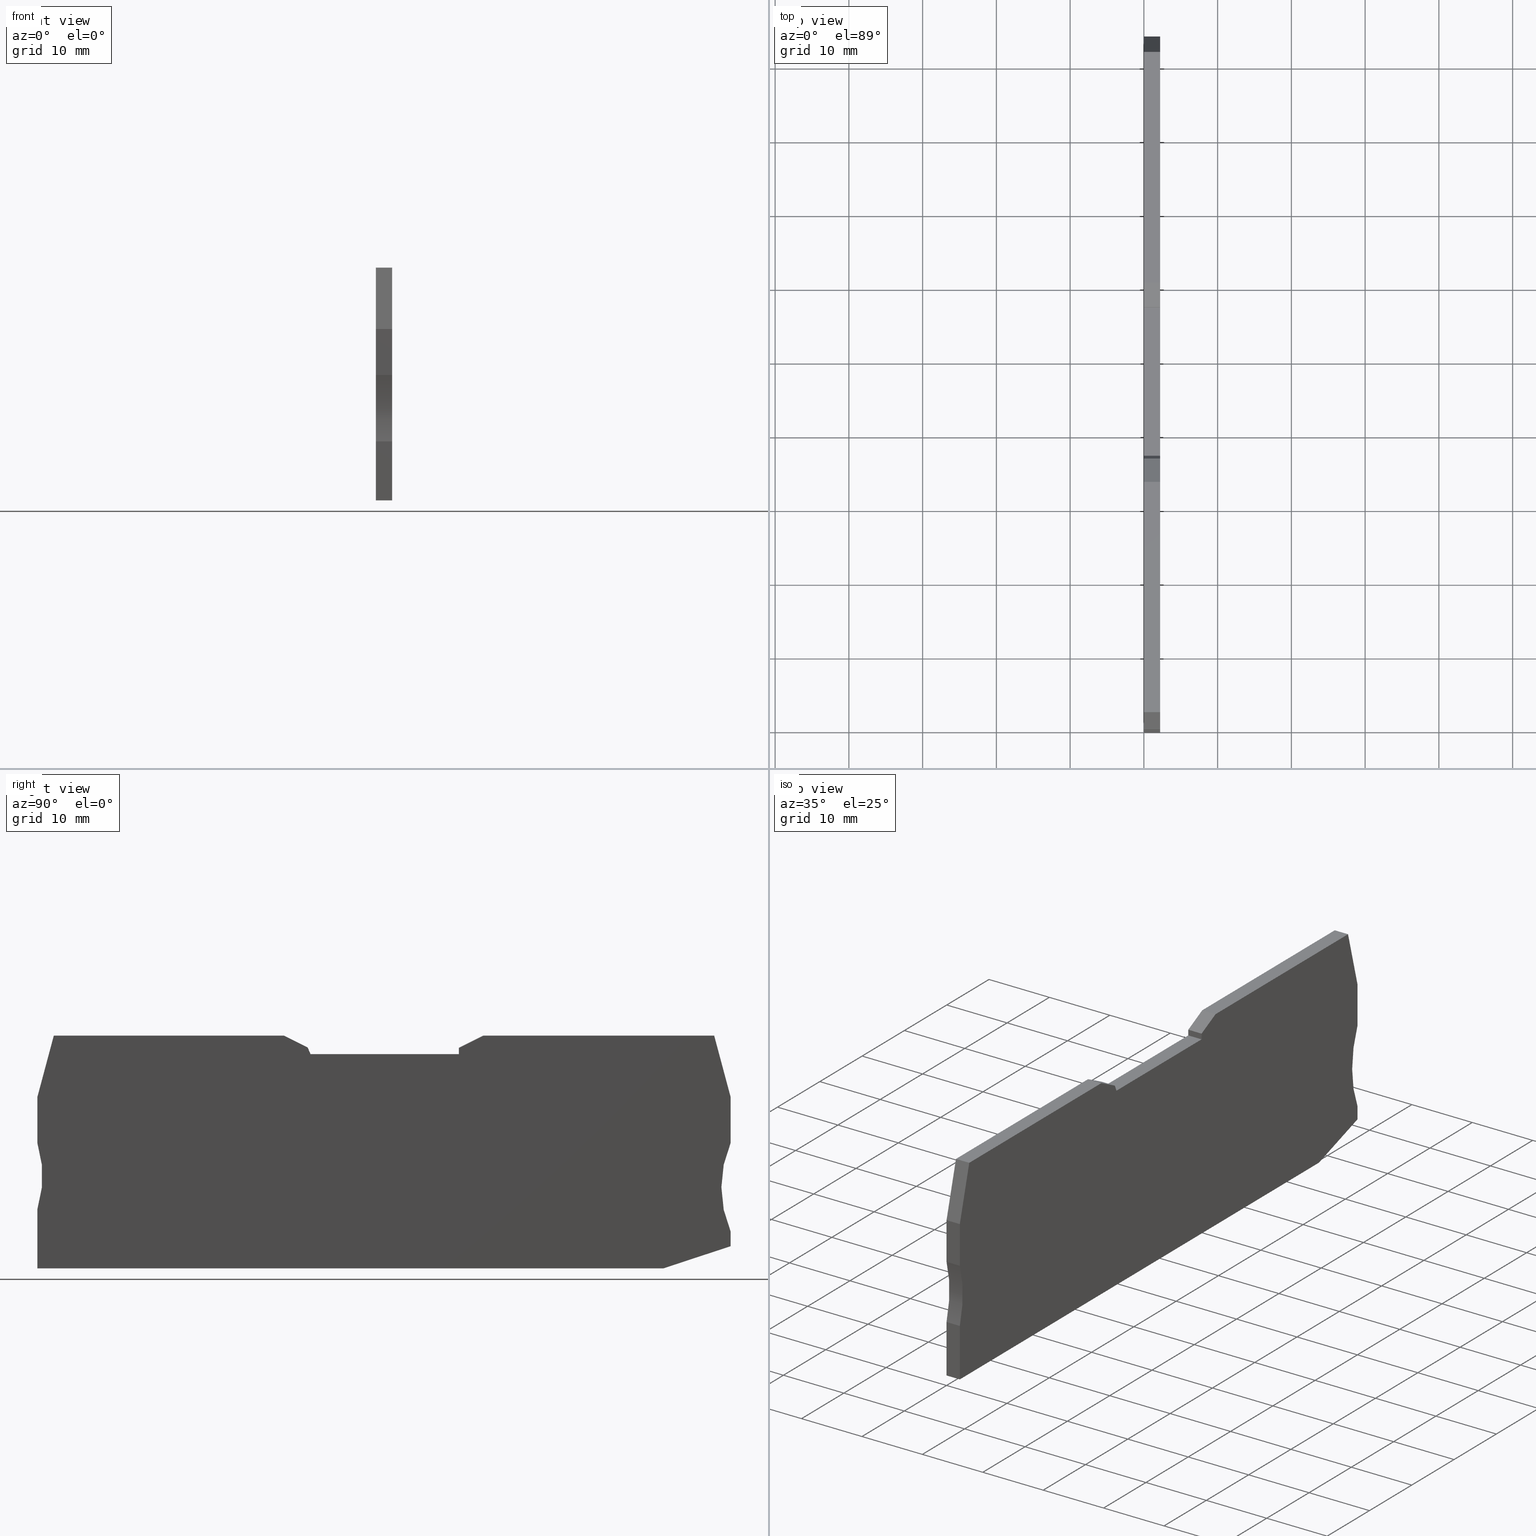
[diagram: canonical four-view strip — front | top / right | iso, engineering-drawing reading convention]
A machine part, canonical four-view strip (front | top / right | iso — engineering-drawing reading convention). The complete STEP part file that produces these views, byte-faithful:
ISO-10303-21;
HEADER;
FILE_DESCRIPTION(('Creo Elements/Direct Modeling STEP Export'),'2;1');
FILE_NAME(
'D:/temp/JobSpoolerServerData/JobServer Files/3d29cea6-d671-4413-abe6-f2
9cb63ec1a1/work/output/model.stp','2018-01-20T22:32:49',(''),(''),
'Creo Elements/Direct Modeling STEP processor for AP214 (Solid Model)',
'Creo Elements/Direct Modeling 18.1I  14-Aug-2016 (C) Parametric Technol
ogy GmbH','');
FILE_SCHEMA(('AUTOMOTIVE_DESIGN { 1 0 10303 214 1 1 1 1 }'));
ENDSEC;
DATA;
#10=CARTESIAN_POINT('',(83.7553585403554,-35.6536172442634,
-3.68594044175552E-14));
#20=DIRECTION('',(0.312838856482264,-0.949806217012117,0.));
#30=DIRECTION('',(-0.949806217012117,-0.312838856482264,0.));
#40=AXIS2_PLACEMENT_3D('',#10,#20,#30);
#50=PLANE('',#40);
#60=CARTESIAN_POINT('',(47.920285,-47.4566600413391,2.19999999999833));
#70=DIRECTION('',(0.949806217012117,0.312838856482264,
9.43689570931383E-16));
#80=VECTOR('',#70,1.);
#90=LINE('',#60,#80);
#100=CARTESIAN_POINT('',(76.0243170722712,-38.2000000000014,
2.19999999999836));
#110=VERTEX_POINT('',#100);
#120=CARTESIAN_POINT('',(85.1296808260529,-35.2009550015923,
2.19999999999836));
#130=VERTEX_POINT('',#120);
#140=EDGE_CURVE('',#110,#130,#90,.T.);
#150=ORIENTED_EDGE('',*,*,#140,.F.);
#160=CARTESIAN_POINT('',(85.1296808260528,-35.2009550015923,
-2.8421709430404E-14));
#170=DIRECTION('',(0.,0.,1.));
#180=VECTOR('',#170,1.);
#190=LINE('',#160,#180);
#200=CARTESIAN_POINT('',(85.1296808260529,-35.2009550015923,
-3.68594044175553E-14));
#210=VERTEX_POINT('',#200);
#220=EDGE_CURVE('',#210,#130,#190,.T.);
#230=ORIENTED_EDGE('',*,*,#220,.T.);
#240=CARTESIAN_POINT('',(47.920285,-47.4566600413391,
-3.68594044175553E-14));
#250=DIRECTION('',(0.949806217012117,0.312838856482264,0.));
#260=VECTOR('',#250,1.);
#270=LINE('',#240,#260);
#280=CARTESIAN_POINT('',(76.0243170722712,-38.2000000000014,
-3.68594044175554E-14));
#290=VERTEX_POINT('',#280);
#300=EDGE_CURVE('',#290,#210,#270,.T.);
#310=ORIENTED_EDGE('',*,*,#300,.T.);
#320=CARTESIAN_POINT('',(76.0243170722712,-38.2000000000014,
-2.8421709430404E-14));
#330=DIRECTION('',(0.,0.,-1.));
#340=VECTOR('',#330,1.);
#350=LINE('',#320,#340);
#360=EDGE_CURVE('',#110,#290,#350,.T.);
#370=ORIENTED_EDGE('',*,*,#360,.T.);
#380=EDGE_LOOP('',(#370,#310,#230,#150));
#390=FACE_OUTER_BOUND('',#380,.T.);
#400=ADVANCED_FACE('',(#390),#50,.T.);
#410=COLOUR_RGB('',0.560784339904785,0.588235318660736,0.600000023841858
);
#420=FILL_AREA_STYLE_COLOUR('',#410);
#430=FILL_AREA_STYLE('',(#420));
#440=SURFACE_STYLE_FILL_AREA(#430);
#450=SURFACE_SIDE_STYLE('',(#440));
#460=SURFACE_STYLE_USAGE(.BOTH.,#450);
#470=PRESENTATION_STYLE_ASSIGNMENT((#460));
#480=CARTESIAN_POINT('',(13.8541909547486,-6.65000000001046,
2.19999999999845));
#490=DIRECTION('',(3.52929730522715E-30,-3.03161873061274E-15,1.));
#500=DIRECTION('',(-1.06994838164277E-44,-1.,-3.03161873061274E-15));
#510=AXIS2_PLACEMENT_3D('',#480,#490,#500);
#520=PLANE('',#510);
#530=CARTESIAN_POINT('',(47.920285,-18.3203020870181,2.19999999999842));
#540=DIRECTION('',(-0.894427190999537,0.447213595500715,
1.33226762955019E-15));
#550=VECTOR('',#540,1.);
#560=LINE('',#530,#550);
#570=CARTESIAN_POINT('',(27.7810984886105,-8.25070883130206,
2.19999999999845));
#580=VERTEX_POINT('',#570);
#590=CARTESIAN_POINT('',(24.5796808260341,-6.65000000001046,
2.19999999999845));
#600=VERTEX_POINT('',#590);
#610=EDGE_CURVE('',#580,#600,#560,.T.);
#620=ORIENTED_EDGE('',*,*,#610,.T.);
#630=CARTESIAN_POINT('',(38.6158283461584,-33.886127,2.19999999999837));
#640=DIRECTION('',(-0.389303997086195,0.92110933002153,
2.80331313717852E-15));
#650=VECTOR('',#640,1.);
#660=LINE('',#630,#650);
#670=CARTESIAN_POINT('',(28.1611811075906,-9.15000000000794,
2.19999999999844));
#680=VERTEX_POINT('',#670);
#690=EDGE_CURVE('',#680,#580,#660,.T.);
#700=ORIENTED_EDGE('',*,*,#690,.T.);
#710=CARTESIAN_POINT('',(47.920285,-9.15000000000794,2.19999999999844));
#720=DIRECTION('',(-1.,0.,3.52929730522715E-30));
#730=VECTOR('',#720,1.);
#740=LINE('',#710,#730);
#750=CARTESIAN_POINT('',(48.278415052629,-9.15000000000794,
2.19999999999884));
#760=VERTEX_POINT('',#750);
#770=EDGE_CURVE('',#760,#680,#740,.T.);
#780=ORIENTED_EDGE('',*,*,#770,.T.);
#790=CARTESIAN_POINT('',(48.278415052629,-33.886127,2.19999999999837));
#800=DIRECTION('',(-3.78653234506086E-29,-1.,-3.03161873061274E-15));
#810=VECTOR('',#800,1.);
#820=LINE('',#790,#810);
#830=CARTESIAN_POINT('',(48.278415052629,-8.30000000000333,
2.19999999999845));
#840=VERTEX_POINT('',#830);
#850=EDGE_CURVE('',#840,#760,#820,.T.);
#860=ORIENTED_EDGE('',*,*,#850,.T.);
#870=CARTESIAN_POINT('',(47.920285,-8.4790650263176,2.19999999999845));
#880=DIRECTION('',(-0.894427191000128,-0.447213595499534,
-1.36002320516582E-15));
#890=VECTOR('',#880,1.);
#900=LINE('',#870,#890);
#910=CARTESIAN_POINT('',(51.5784150526186,-6.65000000001046,
2.19999999999845));
#920=VERTEX_POINT('',#910);
#930=EDGE_CURVE('',#920,#840,#900,.T.);
#940=ORIENTED_EDGE('',*,*,#930,.T.);
#950=CARTESIAN_POINT('',(47.920285,-6.65000000001046,2.19999999999845));
#960=DIRECTION('',(-1.,0.,3.52929730522715E-30));
#970=VECTOR('',#960,1.);
#980=LINE('',#950,#970);
#990=CARTESIAN_POINT('',(82.9015374042713,-6.65000000001045,
2.19999999999845));
#1000=VERTEX_POINT('',#990);
#1010=EDGE_CURVE('',#1000,#920,#980,.T.);
#1020=ORIENTED_EDGE('',*,*,#1010,.T.);
#1030=CARTESIAN_POINT('',(90.1994356388816,-33.886127,2.19999999999837))
;
#1040=DIRECTION('',(-0.258819045102903,0.965925826288966,
2.96984659087229E-15));
#1050=VECTOR('',#1040,1.);
#1060=LINE('',#1030,#1050);
#1070=CARTESIAN_POINT('',(85.1296808260516,-14.9655444566315,
2.19999999999843));
#1080=VERTEX_POINT('',#1070);
#1090=EDGE_CURVE('',#1080,#1000,#1060,.T.);
#1100=ORIENTED_EDGE('',*,*,#1090,.T.);
#1110=CARTESIAN_POINT('',(85.1296808260516,-33.886127,2.19999999999837))
;
#1120=DIRECTION('',(-2.77555756156289E-17,1.,3.03161873061274E-15));
#1130=VECTOR('',#1120,1.);
#1140=LINE('',#1110,#1130);
#1150=CARTESIAN_POINT('',(85.1296808260516,-21.2000000000027,
2.19999999999839));
#1160=VERTEX_POINT('',#1150);
#1170=EDGE_CURVE('',#1160,#1080,#1140,.T.);
#1180=ORIENTED_EDGE('',*,*,#1170,.T.);
#1190=CARTESIAN_POINT('',(98.8774079109191,-27.2000000000027,
2.19999999999839));
#1200=DIRECTION('',(0.,0.,1.));
#1210=DIRECTION('',(1.,0.,0.));
#1220=AXIS2_PLACEMENT_3D('',#1190,#1200,#1210);
#1230=CIRCLE('',#1220,15.);
#1240=CARTESIAN_POINT('',(85.1296808260528,-33.2000000000057,
2.19999999999837));
#1250=VERTEX_POINT('',#1240);
#1260=EDGE_CURVE('',#1160,#1250,#1230,.T.);
#1270=ORIENTED_EDGE('',*,*,#1260,.F.);
#1280=CARTESIAN_POINT('',(85.1296808260528,-33.886127,2.19999999999837))
;
#1290=DIRECTION('',(0.,-1.,-3.03161873061274E-15));
#1300=VECTOR('',#1290,1.);
#1310=LINE('',#1280,#1300);
#1320=EDGE_CURVE('',#1250,#130,#1310,.T.);
#1330=ORIENTED_EDGE('',*,*,#1320,.F.);
#1340=ORIENTED_EDGE('',*,*,#140,.T.);
#1350=CARTESIAN_POINT('',(47.920285,-38.2000000000014,2.19999999999836))
;
#1360=DIRECTION('',(1.,0.,-3.52929730522715E-30));
#1370=VECTOR('',#1360,1.);
#1380=LINE('',#1350,#1370);
#1390=CARTESIAN_POINT('',(-8.87031917530946,-38.2000000000014,
2.19999999999836));
#1400=VERTEX_POINT('',#1390);
#1410=EDGE_CURVE('',#1400,#110,#1380,.T.);
#1420=ORIENTED_EDGE('',*,*,#1410,.T.);
#1430=CARTESIAN_POINT('',(-8.87031917530946,-33.886127,2.19999999999837)
);
#1440=DIRECTION('',(0.,-1.,-3.03161873061274E-15));
#1450=VECTOR('',#1440,1.);
#1460=LINE('',#1430,#1450);
#1470=CARTESIAN_POINT('',(-8.87031917530946,-30.2000000000115,
2.19999999999839));
#1480=VERTEX_POINT('',#1470);
#1490=EDGE_CURVE('',#1480,#1400,#1460,.T.);
#1500=ORIENTED_EDGE('',*,*,#1490,.T.);
#1510=CARTESIAN_POINT('',(-23.1794071965627,-25.7000000000085,
2.19999999999839));
#1520=DIRECTION('',(0.,0.,1.));
#1530=DIRECTION('',(1.,0.,0.));
#1540=AXIS2_PLACEMENT_3D('',#1510,#1520,#1530);
#1550=CIRCLE('',#1540,15.);
#1560=CARTESIAN_POINT('',(-8.87031917530947,-21.2000000000055,
2.19999999999839));
#1570=VERTEX_POINT('',#1560);
#1580=EDGE_CURVE('',#1480,#1570,#1550,.T.);
#1590=ORIENTED_EDGE('',*,*,#1580,.F.);
#1600=CARTESIAN_POINT('',(-8.87031917530947,-33.886127,2.19999999999837)
);
#1610=DIRECTION('',(0.,-1.,-3.03161873061274E-15));
#1620=VECTOR('',#1610,1.);
#1630=LINE('',#1600,#1620);
#1640=CARTESIAN_POINT('',(-8.87031917530947,-14.9655444566314,
2.19999999999843));
#1650=VERTEX_POINT('',#1640);
#1660=EDGE_CURVE('',#1650,#1570,#1630,.T.);
#1670=ORIENTED_EDGE('',*,*,#1660,.T.);
#1680=CARTESIAN_POINT('',(-13.9400739881395,-33.886127,2.19999999999837)
);
#1690=DIRECTION('',(-0.258819045102903,-0.965925826288966,
-2.96984659087229E-15));
#1700=VECTOR('',#1690,1.);
#1710=LINE('',#1680,#1700);
#1720=CARTESIAN_POINT('',(-6.64217575352925,-6.65000000001046,
2.19999999999845));
#1730=VERTEX_POINT('',#1720);
#1740=EDGE_CURVE('',#1730,#1650,#1710,.T.);
#1750=ORIENTED_EDGE('',*,*,#1740,.T.);
#1760=CARTESIAN_POINT('',(47.920285,-6.65000000001046,2.19999999999845))
;
#1770=DIRECTION('',(-1.,0.,3.52929730522715E-30));
#1780=VECTOR('',#1770,1.);
#1790=LINE('',#1760,#1780);
#1800=EDGE_CURVE('',#600,#1730,#1790,.T.);
#1810=ORIENTED_EDGE('',*,*,#1800,.T.);
#1820=EDGE_LOOP('',(#1810,#1750,#1670,#1590,#1500,#1420,#1340,#1330,
#1270,#1180,#1100,#1020,#940,#860,#780,#700,#620));
#1830=FACE_OUTER_BOUND('',#1820,.T.);
#1840=ADVANCED_FACE('',(#1830),#520,.T.);
#1850=COLOUR_RGB('',0.560784339904785,0.588235318660736,
0.600000023841858);
#1860=FILL_AREA_STYLE_COLOUR('',#1850);
#1870=FILL_AREA_STYLE('',(#1860));
#1880=SURFACE_STYLE_FILL_AREA(#1870);
#1890=SURFACE_SIDE_STYLE('',(#1880));
#1900=SURFACE_STYLE_USAGE(.BOTH.,#1890);
#1910=PRESENTATION_STYLE_ASSIGNMENT((#1900));
#1920=CARTESIAN_POINT('',(79.8284829547486,-6.65000000001046,
-3.68594044175552E-14));
#1930=DIRECTION('',(0.,1.,0.));
#1940=DIRECTION('',(0.,0.,1.));
#1950=AXIS2_PLACEMENT_3D('',#1920,#1930,#1940);
#1960=PLANE('',#1950);
#1970=CARTESIAN_POINT('',(82.9015374042713,-6.65000000001046,
-2.8421709430404E-14));
#1980=DIRECTION('',(0.,0.,-1.));
#1990=VECTOR('',#1980,1.);
#2000=LINE('',#1970,#1990);
#2010=CARTESIAN_POINT('',(82.9015374042713,-6.65000000001045,
-3.68594044175555E-14));
#2020=VERTEX_POINT('',#2010);
#2030=EDGE_CURVE('',#1000,#2020,#2000,.T.);
#2040=ORIENTED_EDGE('',*,*,#2030,.T.);
#2050=ORIENTED_EDGE('',*,*,#1010,.F.);
#2060=CARTESIAN_POINT('',(51.5784150526186,-6.65000000001045,
-2.8421709430404E-14));
#2070=DIRECTION('',(-1.85088132276715E-14,0.,-1.));
#2080=VECTOR('',#2070,1.);
#2090=LINE('',#2060,#2080);
#2100=CARTESIAN_POINT('',(51.5784150526186,-6.65000000001046,
-3.68594044175553E-14));
#2110=VERTEX_POINT('',#2100);
#2120=EDGE_CURVE('',#920,#2110,#2090,.T.);
#2130=ORIENTED_EDGE('',*,*,#2120,.F.);
#2140=CARTESIAN_POINT('',(47.920285,-6.65000000001046,
-3.68594044175553E-14));
#2150=DIRECTION('',(-1.,0.,3.52929730522715E-30));
#2160=VECTOR('',#2150,1.);
#2170=LINE('',#2140,#2160);
#2180=EDGE_CURVE('',#2020,#2110,#2170,.T.);
#2190=ORIENTED_EDGE('',*,*,#2180,.T.);
#2200=EDGE_LOOP('',(#2190,#2130,#2050,#2040));
#2210=FACE_OUTER_BOUND('',#2200,.T.);
#2220=ADVANCED_FACE('',(#2210),#1960,.T.);
#2230=COLOUR_RGB('',0.560784339904785,0.588235318660736,
0.600000023841858);
#2240=FILL_AREA_STYLE_COLOUR('',#2230);
#2250=FILL_AREA_STYLE('',(#2240));
#2260=SURFACE_STYLE_FILL_AREA(#2250);
#2270=SURFACE_SIDE_STYLE('',(#2260));
#2280=SURFACE_STYLE_USAGE(.BOTH.,#2270);
#2290=PRESENTATION_STYLE_ASSIGNMENT((#2280));
#2300=CARTESIAN_POINT('',(98.8774079109191,-27.2000000000027,
-3.68594044175552E-14));
#2310=DIRECTION('',(0.,0.,1.));
#2320=DIRECTION('',(1.,0.,0.));
#2330=AXIS2_PLACEMENT_3D('',#2300,#2310,#2320);
#2340=CYLINDRICAL_SURFACE('',#2330,15.);
#2350=CARTESIAN_POINT('',(85.1296808260528,-33.2000000000057,
-3.68594044175552E-14));
#2360=DIRECTION('',(0.,0.,1.));
#2370=VECTOR('',#2360,1.);
#2380=LINE('',#2350,#2370);
#2390=CARTESIAN_POINT('',(85.1296808260528,-33.2000000000057,
-3.68594044175555E-14));
#2400=VERTEX_POINT('',#2390);
#2410=EDGE_CURVE('',#2400,#1250,#2380,.T.);
#2420=ORIENTED_EDGE('',*,*,#2410,.F.);
#2430=ORIENTED_EDGE('',*,*,#1260,.T.);
#2440=CARTESIAN_POINT('',(85.1296808260516,-21.2000000000027,
-3.68594044175552E-14));
#2450=DIRECTION('',(0.,0.,1.));
#2460=VECTOR('',#2450,1.);
#2470=LINE('',#2440,#2460);
#2480=CARTESIAN_POINT('',(85.1296808260516,-21.2000000000027,
-3.68594044175555E-14));
#2490=VERTEX_POINT('',#2480);
#2500=EDGE_CURVE('',#2490,#1160,#2470,.T.);
#2510=ORIENTED_EDGE('',*,*,#2500,.T.);
#2520=CARTESIAN_POINT('',(98.8774079109191,-27.2000000000027,
-3.68594044175555E-14));
#2530=DIRECTION('',(0.,0.,1.));
#2540=DIRECTION('',(1.,0.,0.));
#2550=AXIS2_PLACEMENT_3D('',#2520,#2530,#2540);
#2560=CIRCLE('',#2550,15.);
#2570=EDGE_CURVE('',#2490,#2400,#2560,.T.);
#2580=ORIENTED_EDGE('',*,*,#2570,.F.);
#2590=EDGE_LOOP('',(#2580,#2510,#2430,#2420));
#2600=FACE_OUTER_BOUND('',#2590,.T.);
#2610=ADVANCED_FACE('',(#2600),#2340,.F.);
#2620=COLOUR_RGB('',0.560784339904785,0.588235318660736,
0.600000023841858);
#2630=FILL_AREA_STYLE_COLOUR('',#2620);
#2640=FILL_AREA_STYLE('',(#2630));
#2650=SURFACE_STYLE_FILL_AREA(#2640);
#2660=SURFACE_SIDE_STYLE('',(#2650));
#2670=SURFACE_STYLE_USAGE(.BOTH.,#2660);
#2680=PRESENTATION_STYLE_ASSIGNMENT((#2670));
#2690=CARTESIAN_POINT('',(-6.74147517268441,-7.02059047745902,
2.19999999999997));
#2700=DIRECTION('',(-0.965925826288966,0.258819045102903,0.));
#2710=DIRECTION('',(0.258819045102903,0.965925826288966,0.));
#2720=AXIS2_PLACEMENT_3D('',#2690,#2700,#2710);
#2730=PLANE('',#2720);
#2740=CARTESIAN_POINT('',(-13.9400739881395,-33.886127,
-3.68594044175551E-14));
#2750=DIRECTION('',(-0.258819045102903,-0.965925826288966,0.));
#2760=VECTOR('',#2750,1.);
#2770=LINE('',#2740,#2760);
#2780=CARTESIAN_POINT('',(-6.64217575352925,-6.65000000001046,
-3.68594044175551E-14));
#2790=VERTEX_POINT('',#2780);
#2800=CARTESIAN_POINT('',(-8.87031917530947,-14.9655444566314,
-3.68594044175551E-14));
#2810=VERTEX_POINT('',#2800);
#2820=EDGE_CURVE('',#2790,#2810,#2770,.T.);
#2830=ORIENTED_EDGE('',*,*,#2820,.T.);
#2840=CARTESIAN_POINT('',(-6.64217575352925,-6.65000000001046,
-2.8421709430404E-14));
#2850=DIRECTION('',(0.,0.,1.));
#2860=VECTOR('',#2850,1.);
#2870=LINE('',#2840,#2860);
#2880=EDGE_CURVE('',#2790,#1730,#2870,.T.);
#2890=ORIENTED_EDGE('',*,*,#2880,.F.);
#2900=ORIENTED_EDGE('',*,*,#1740,.F.);
#2910=CARTESIAN_POINT('',(-8.87031917530947,-14.9655444566314,
-2.8421709430404E-14));
#2920=DIRECTION('',(0.,0.,1.));
#2930=VECTOR('',#2920,1.);
#2940=LINE('',#2910,#2930);
#2950=EDGE_CURVE('',#2810,#1650,#2940,.T.);
#2960=ORIENTED_EDGE('',*,*,#2950,.T.);
#2970=EDGE_LOOP('',(#2960,#2900,#2890,#2830));
#2980=FACE_OUTER_BOUND('',#2970,.T.);
#2990=ADVANCED_FACE('',(#2980),#2730,.T.);
#3000=COLOUR_RGB('',0.560784339904785,0.588235318660736,
0.600000023841858);
#3010=FILL_AREA_STYLE_COLOUR('',#3000);
#3020=FILL_AREA_STYLE('',(#3010));
#3030=SURFACE_STYLE_FILL_AREA(#3020);
#3040=SURFACE_SIDE_STYLE('',(#3030));
#3050=SURFACE_STYLE_USAGE(.BOTH.,#3040);
#3060=PRESENTATION_STYLE_ASSIGNMENT((#3050));
#3070=CARTESIAN_POINT('',(27.7810984886105,-8.25070883130204,
-9.05973373915859E-13));
#3080=DIRECTION('',(0.92110933002153,0.389303997086195,
-1.02835146664877E-14));
#3090=DIRECTION('',(0.389303997086195,-0.92110933002153,
-7.63756468974913E-15));
#3100=AXIS2_PLACEMENT_3D('',#3070,#3080,#3090);
#3110=PLANE('',#3100);
#3120=ORIENTED_EDGE('',*,*,#690,.F.);
#3130=CARTESIAN_POINT('',(27.7810984886105,-8.25070883130205,
-2.8421709430404E-14));
#3140=DIRECTION('',(-1.24455757664388E-14,3.03161873061275E-15,-1.));
#3150=VECTOR('',#3140,1.);
#3160=LINE('',#3130,#3150);
#3170=CARTESIAN_POINT('',(27.7810984886105,-8.25070883130205,
-3.68594044175553E-14));
#3180=VERTEX_POINT('',#3170);
#3190=EDGE_CURVE('',#580,#3180,#3160,.T.);
#3200=ORIENTED_EDGE('',*,*,#3190,.F.);
#3210=CARTESIAN_POINT('',(38.6158283461584,-33.886127,
-3.68594044175553E-14));
#3220=DIRECTION('',(-0.389303997086195,0.92110933002153,0.));
#3230=VECTOR('',#3220,1.);
#3240=LINE('',#3210,#3230);
#3250=CARTESIAN_POINT('',(28.1611811075905,-9.15000000000794,
-3.68594044175552E-14));
#3260=VERTEX_POINT('',#3250);
#3270=EDGE_CURVE('',#3260,#3180,#3240,.T.);
#3280=ORIENTED_EDGE('',*,*,#3270,.T.);
#3290=CARTESIAN_POINT('',(28.1611811075905,-9.15000000000794,
-2.8421709430404E-14));
#3300=DIRECTION('',(1.11642715270807E-14,-2.5692745025259E-30,1.));
#3310=VECTOR('',#3300,1.);
#3320=LINE('',#3290,#3310);
#3330=EDGE_CURVE('',#3260,#680,#3320,.T.);
#3340=ORIENTED_EDGE('',*,*,#3330,.F.);
#3350=EDGE_LOOP('',(#3340,#3280,#3200,#3120));
#3360=FACE_OUTER_BOUND('',#3350,.T.);
#3370=ADVANCED_FACE('',(#3360),#3110,.T.);
#3380=COLOUR_RGB('',0.560784339904785,0.588235318660736,
0.600000023841858);
#3390=FILL_AREA_STYLE_COLOUR('',#3380);
#3400=FILL_AREA_STYLE('',(#3390));
#3410=SURFACE_STYLE_FILL_AREA(#3400);
#3420=SURFACE_SIDE_STYLE('',(#3410));
#3430=SURFACE_STYLE_USAGE(.BOTH.,#3420);
#3440=PRESENTATION_STYLE_ASSIGNMENT((#3430));
#3450=CARTESIAN_POINT('',(85.1296808260516,-14.9655444566315,
-3.68594044175552E-14));
#3460=DIRECTION('',(1.,2.77555756156289E-17,-0.));
#3470=DIRECTION('',(-2.77555756156289E-17,1.,0.));
#3480=AXIS2_PLACEMENT_3D('',#3450,#3460,#3470);
#3490=PLANE('',#3480);
#3500=CARTESIAN_POINT('',(85.1296808260516,-33.886127,
-3.68594044175555E-14));
#3510=DIRECTION('',(-2.77555756156289E-17,1.,0.));
#3520=VECTOR('',#3510,1.);
#3530=LINE('',#3500,#3520);
#3540=CARTESIAN_POINT('',(85.1296808260516,-14.9655444566315,
-3.68594044175555E-14));
#3550=VERTEX_POINT('',#3540);
#3560=EDGE_CURVE('',#2490,#3550,#3530,.T.);
#3570=ORIENTED_EDGE('',*,*,#3560,.T.);
#3580=ORIENTED_EDGE('',*,*,#2500,.F.);
#3590=ORIENTED_EDGE('',*,*,#1170,.F.);
#3600=CARTESIAN_POINT('',(85.1296808260516,-14.9655444566315,
-2.8421709430404E-14));
#3610=DIRECTION('',(0.,0.,1.));
#3620=VECTOR('',#3610,1.);
#3630=LINE('',#3600,#3620);
#3640=EDGE_CURVE('',#3550,#1080,#3630,.T.);
#3650=ORIENTED_EDGE('',*,*,#3640,.T.);
#3660=EDGE_LOOP('',(#3650,#3590,#3580,#3570));
#3670=FACE_OUTER_BOUND('',#3660,.T.);
#3680=ADVANCED_FACE('',(#3670),#3490,.T.);
#3690=COLOUR_RGB('',0.560784339904785,0.588235318660736,
0.600000023841858);
#3700=FILL_AREA_STYLE_COLOUR('',#3690);
#3710=FILL_AREA_STYLE('',(#3700));
#3720=SURFACE_STYLE_FILL_AREA(#3710);
#3730=SURFACE_SIDE_STYLE('',(#3720));
#3740=SURFACE_STYLE_USAGE(.BOTH.,#3730);
#3750=PRESENTATION_STYLE_ASSIGNMENT((#3740));
#3760=CARTESIAN_POINT('',(67.5296808260516,-38.2000000000014,
-2.8421709430404E-14));
#3770=DIRECTION('',(-0.,-1.,-0.));
#3780=DIRECTION('',(-1.,0.,0.));
#3790=AXIS2_PLACEMENT_3D('',#3760,#3770,#3780);
#3800=PLANE('',#3790);
#3810=ORIENTED_EDGE('',*,*,#360,.F.);
#3820=CARTESIAN_POINT('',(47.920285,-38.2000000000014,
-3.68594044175553E-14));
#3830=DIRECTION('',(1.,0.,-3.52929730522715E-30));
#3840=VECTOR('',#3830,1.);
#3850=LINE('',#3820,#3840);
#3860=CARTESIAN_POINT('',(-8.87031917530946,-38.2000000000014,
-3.68594044175551E-14));
#3870=VERTEX_POINT('',#3860);
#3880=EDGE_CURVE('',#3870,#290,#3850,.T.);
#3890=ORIENTED_EDGE('',*,*,#3880,.T.);
#3900=CARTESIAN_POINT('',(-8.87031917530946,-38.2000000000014,
-2.8421709430404E-14));
#3910=DIRECTION('',(0.,0.,-1.));
#3920=VECTOR('',#3910,1.);
#3930=LINE('',#3900,#3920);
#3940=EDGE_CURVE('',#1400,#3870,#3930,.T.);
#3950=ORIENTED_EDGE('',*,*,#3940,.T.);
#3960=ORIENTED_EDGE('',*,*,#1410,.F.);
#3970=EDGE_LOOP('',(#3960,#3950,#3890,#3810));
#3980=FACE_OUTER_BOUND('',#3970,.T.);
#3990=ADVANCED_FACE('',(#3980),#3800,.T.);
#4000=COLOUR_RGB('',0.560784339904785,0.588235318660736,
0.600000023841858);
#4010=FILL_AREA_STYLE_COLOUR('',#4000);
#4020=FILL_AREA_STYLE('',(#4010));
#4030=SURFACE_STYLE_FILL_AREA(#4020);
#4040=SURFACE_SIDE_STYLE('',(#4030));
#4050=SURFACE_STYLE_USAGE(.BOTH.,#4040);
#4060=PRESENTATION_STYLE_ASSIGNMENT((#4050));
#4070=CARTESIAN_POINT('',(13.8541909547486,-6.65000000001046,
-3.68594044175552E-14));
#4080=DIRECTION('',(-0.,1.,0.));
#4090=DIRECTION('',(3.52929730522715E-30,0.,1.));
#4100=AXIS2_PLACEMENT_3D('',#4070,#4080,#4090);
#4110=PLANE('',#4100);
#4120=CARTESIAN_POINT('',(24.5796808260341,-6.65000000001046,
-2.8421709430404E-14));
#4130=DIRECTION('',(6.38233830522613E-15,0.,1.));
#4140=VECTOR('',#4130,1.);
#4150=LINE('',#4120,#4140);
#4160=CARTESIAN_POINT('',(24.5796808260341,-6.65000000001046,
-3.68594044175552E-14));
#4170=VERTEX_POINT('',#4160);
#4180=EDGE_CURVE('',#4170,#600,#4150,.T.);
#4190=ORIENTED_EDGE('',*,*,#4180,.F.);
#4200=ORIENTED_EDGE('',*,*,#1800,.F.);
#4210=ORIENTED_EDGE('',*,*,#2880,.T.);
#4220=CARTESIAN_POINT('',(47.920285,-6.65000000001046,
-3.68594044175553E-14));
#4230=DIRECTION('',(-1.,0.,3.52929730522715E-30));
#4240=VECTOR('',#4230,1.);
#4250=LINE('',#4220,#4240);
#4260=EDGE_CURVE('',#4170,#2790,#4250,.T.);
#4270=ORIENTED_EDGE('',*,*,#4260,.T.);
#4280=EDGE_LOOP('',(#4270,#4210,#4200,#4190));
#4290=FACE_OUTER_BOUND('',#4280,.T.);
#4300=ADVANCED_FACE('',(#4290),#4110,.T.);
#4310=COLOUR_RGB('',0.560784339904785,0.588235318660736,
0.600000023841858);
#4320=FILL_AREA_STYLE_COLOUR('',#4310);
#4330=FILL_AREA_STYLE('',(#4320));
#4340=SURFACE_STYLE_FILL_AREA(#4330);
#4350=SURFACE_SIDE_STYLE('',(#4340));
#4360=SURFACE_STYLE_USAGE(.BOTH.,#4350);
#4370=PRESENTATION_STYLE_ASSIGNMENT((#4360));
#4380=CARTESIAN_POINT('',(48.278415052629,-8.30000000000333,
2.19999999999884));
#4390=DIRECTION('',(-1.,0.,1.24455757664388E-14));
#4400=DIRECTION('',(3.77302406067959E-29,1.,3.03161873061274E-15));
#4410=AXIS2_PLACEMENT_3D('',#4380,#4390,#4400);
#4420=PLANE('',#4410);
#4430=CARTESIAN_POINT('',(48.2784150526289,-33.886127,
-3.68594044175553E-14));
#4440=DIRECTION('',(0.,-1.,0.));
#4450=VECTOR('',#4440,1.);
#4460=LINE('',#4430,#4450);
#4470=CARTESIAN_POINT('',(48.2784150526289,-8.30000000000332,
-3.68594044175553E-14));
#4480=VERTEX_POINT('',#4470);
#4490=CARTESIAN_POINT('',(48.2784150526289,-9.15000000000794,
-3.68594044175553E-14));
#4500=VERTEX_POINT('',#4490);
#4510=EDGE_CURVE('',#4480,#4500,#4460,.T.);
#4520=ORIENTED_EDGE('',*,*,#4510,.T.);
#4530=CARTESIAN_POINT('',(48.2784150526289,-8.30000000000332,
-2.8421709430404E-14));
#4540=DIRECTION('',(-1.24455757664388E-14,3.03161873061275E-15,-1.));
#4550=VECTOR('',#4540,1.);
#4560=LINE('',#4530,#4550);
#4570=EDGE_CURVE('',#840,#4480,#4560,.T.);
#4580=ORIENTED_EDGE('',*,*,#4570,.T.);
#4590=ORIENTED_EDGE('',*,*,#850,.F.);
#4600=CARTESIAN_POINT('',(48.2784150526289,-9.15000000000794,
-2.8421709430404E-14));
#4610=DIRECTION('',(-1.24455757664388E-14,3.15544362088405E-30,-1.));
#4620=VECTOR('',#4610,1.);
#4630=LINE('',#4600,#4620);
#4640=EDGE_CURVE('',#760,#4500,#4630,.T.);
#4650=ORIENTED_EDGE('',*,*,#4640,.F.);
#4660=EDGE_LOOP('',(#4650,#4590,#4580,#4520));
#4670=FACE_OUTER_BOUND('',#4660,.T.);
#4680=ADVANCED_FACE('',(#4670),#4420,.T.);
#4690=COLOUR_RGB('',0.560784339904785,0.588235318660736,
0.600000023841858);
#4700=FILL_AREA_STYLE_COLOUR('',#4690);
#4710=FILL_AREA_STYLE('',(#4700));
#4720=SURFACE_STYLE_FILL_AREA(#4710);
#4730=SURFACE_SIDE_STYLE('',(#4720));
#4740=SURFACE_STYLE_USAGE(.BOTH.,#4730);
#4750=PRESENTATION_STYLE_ASSIGNMENT((#4740));
#4760=CARTESIAN_POINT('',(37.5981805461789,-9.15000000000794,
2.09999999999844));
#4770=DIRECTION('',(1.88233225079641E-16,1.,0.));
#4780=DIRECTION('',(1.,-1.88233225079641E-16,0.));
#4790=AXIS2_PLACEMENT_3D('',#4760,#4770,#4780);
#4800=PLANE('',#4790);
#4810=ORIENTED_EDGE('',*,*,#3330,.T.);
#4820=CARTESIAN_POINT('',(47.920285,-9.15000000000794,
-3.68594044175553E-14));
#4830=DIRECTION('',(-1.,1.88233225079641E-16,3.5252221702064E-30));
#4840=VECTOR('',#4830,1.);
#4850=LINE('',#4820,#4840);
#4860=EDGE_CURVE('',#4500,#3260,#4850,.T.);
#4870=ORIENTED_EDGE('',*,*,#4860,.T.);
#4880=ORIENTED_EDGE('',*,*,#4640,.T.);
#4890=ORIENTED_EDGE('',*,*,#770,.F.);
#4900=EDGE_LOOP('',(#4890,#4880,#4870,#4810));
#4910=FACE_OUTER_BOUND('',#4900,.T.);
#4920=ADVANCED_FACE('',(#4910),#4800,.T.);
#4930=COLOUR_RGB('',0.560784339904785,0.588235318660736,
0.600000023841858);
#4940=FILL_AREA_STYLE_COLOUR('',#4930);
#4950=FILL_AREA_STYLE('',(#4940));
#4960=SURFACE_STYLE_FILL_AREA(#4950);
#4970=SURFACE_SIDE_STYLE('',(#4960));
#4980=SURFACE_STYLE_USAGE(.BOTH.,#4970);
#4990=PRESENTATION_STYLE_ASSIGNMENT((#4980));
#5000=CARTESIAN_POINT('',(-8.87031917530946,-30.4972542058032,
2.19999999999997));
#5010=DIRECTION('',(-1.,0.,0.));
#5020=DIRECTION('',(0.,1.,0.));
#5030=AXIS2_PLACEMENT_3D('',#5000,#5010,#5020);
#5040=PLANE('',#5030);
#5050=ORIENTED_EDGE('',*,*,#1490,.F.);
#5060=ORIENTED_EDGE('',*,*,#3940,.F.);
#5070=CARTESIAN_POINT('',(-8.87031917530946,-33.886127,
-3.68594044175551E-14));
#5080=DIRECTION('',(0.,-1.,0.));
#5090=VECTOR('',#5080,1.);
#5100=LINE('',#5070,#5090);
#5110=CARTESIAN_POINT('',(-8.87031917530946,-30.2000000000115,
-3.68594044175552E-14));
#5120=VERTEX_POINT('',#5110);
#5130=EDGE_CURVE('',#5120,#3870,#5100,.T.);
#5140=ORIENTED_EDGE('',*,*,#5130,.T.);
#5150=CARTESIAN_POINT('',(-8.87031917530946,-30.2000000000115,
2.19999999999997));
#5160=DIRECTION('',(0.,0.,1.));
#5170=VECTOR('',#5160,1.);
#5180=LINE('',#5150,#5170);
#5190=EDGE_CURVE('',#5120,#1480,#5180,.T.);
#5200=ORIENTED_EDGE('',*,*,#5190,.F.);
#5210=EDGE_LOOP('',(#5200,#5140,#5060,#5050));
#5220=FACE_OUTER_BOUND('',#5210,.T.);
#5230=ADVANCED_FACE('',(#5220),#5040,.T.);
#5240=COLOUR_RGB('',0.560784339904785,0.588235318660736,
0.600000023841858);
#5250=FILL_AREA_STYLE_COLOUR('',#5240);
#5260=FILL_AREA_STYLE('',(#5250));
#5270=SURFACE_STYLE_FILL_AREA(#5260);
#5280=SURFACE_SIDE_STYLE('',(#5270));
#5290=SURFACE_STYLE_USAGE(.BOTH.,#5280);
#5300=PRESENTATION_STYLE_ASSIGNMENT((#5290));
#5310=CARTESIAN_POINT('',(13.8541909547486,-7.65000000001047,
-3.68594044175552E-14));
#5320=DIRECTION('',(-3.52929730522715E-30,0.,-1.));
#5330=DIRECTION('',(0.,1.,0.));
#5340=AXIS2_PLACEMENT_3D('',#5310,#5320,#5330);
#5350=PLANE('',#5340);
#5360=ORIENTED_EDGE('',*,*,#3270,.F.);
#5370=CARTESIAN_POINT('',(47.920285,-18.3203020870181,
-3.68594044175553E-14));
#5380=DIRECTION('',(-0.894427190999537,0.447213595500715,0.));
#5390=VECTOR('',#5380,1.);
#5400=LINE('',#5370,#5390);
#5410=EDGE_CURVE('',#3180,#4170,#5400,.T.);
#5420=ORIENTED_EDGE('',*,*,#5410,.F.);
#5430=ORIENTED_EDGE('',*,*,#4260,.F.);
#5440=ORIENTED_EDGE('',*,*,#2820,.F.);
#5450=CARTESIAN_POINT('',(-8.87031917530947,-33.886127,
-3.68594044175551E-14));
#5460=DIRECTION('',(0.,-1.,0.));
#5470=VECTOR('',#5460,1.);
#5480=LINE('',#5450,#5470);
#5490=CARTESIAN_POINT('',(-8.87031917530947,-21.2000000000055,
-3.68594044175552E-14));
#5500=VERTEX_POINT('',#5490);
#5510=EDGE_CURVE('',#2810,#5500,#5480,.T.);
#5520=ORIENTED_EDGE('',*,*,#5510,.F.);
#5530=CARTESIAN_POINT('',(-23.1794071965627,-25.7000000000085,
-3.68594044175552E-14));
#5540=DIRECTION('',(0.,0.,1.));
#5550=DIRECTION('',(1.,0.,0.));
#5560=AXIS2_PLACEMENT_3D('',#5530,#5540,#5550);
#5570=CIRCLE('',#5560,15.);
#5580=EDGE_CURVE('',#5120,#5500,#5570,.T.);
#5590=ORIENTED_EDGE('',*,*,#5580,.T.);
#5600=ORIENTED_EDGE('',*,*,#5130,.F.);
#5610=ORIENTED_EDGE('',*,*,#3880,.F.);
#5620=ORIENTED_EDGE('',*,*,#300,.F.);
#5630=CARTESIAN_POINT('',(85.1296808260528,-33.886127,
-3.68594044175555E-14));
#5640=DIRECTION('',(0.,-1.,0.));
#5650=VECTOR('',#5640,1.);
#5660=LINE('',#5630,#5650);
#5670=EDGE_CURVE('',#2400,#210,#5660,.T.);
#5680=ORIENTED_EDGE('',*,*,#5670,.T.);
#5690=ORIENTED_EDGE('',*,*,#2570,.T.);
#5700=ORIENTED_EDGE('',*,*,#3560,.F.);
#5710=CARTESIAN_POINT('',(90.1994356388816,-33.886127,
-3.68594044175555E-14));
#5720=DIRECTION('',(-0.258819045102903,0.965925826288966,0.));
#5730=VECTOR('',#5720,1.);
#5740=LINE('',#5710,#5730);
#5750=EDGE_CURVE('',#3550,#2020,#5740,.T.);
#5760=ORIENTED_EDGE('',*,*,#5750,.F.);
#5770=ORIENTED_EDGE('',*,*,#2180,.F.);
#5780=CARTESIAN_POINT('',(47.920285,-8.47906502631758,
-3.68594044175553E-14));
#5790=DIRECTION('',(-0.894427191000128,-0.447213595499534,0.));
#5800=VECTOR('',#5790,1.);
#5810=LINE('',#5780,#5800);
#5820=EDGE_CURVE('',#2110,#4480,#5810,.T.);
#5830=ORIENTED_EDGE('',*,*,#5820,.F.);
#5840=ORIENTED_EDGE('',*,*,#4510,.F.);
#5850=ORIENTED_EDGE('',*,*,#4860,.F.);
#5860=EDGE_LOOP('',(#5850,#5840,#5830,#5770,#5760,#5700,#5690,#5680,
#5620,#5610,#5600,#5590,#5520,#5440,#5430,#5420,#5360));
#5870=FACE_OUTER_BOUND('',#5860,.T.);
#5880=ADVANCED_FACE('',(#5870),#5350,.T.);
#5890=COLOUR_RGB('',0.560784339904785,0.588235318660736,
0.600000023841858);
#5900=FILL_AREA_STYLE_COLOUR('',#5890);
#5910=FILL_AREA_STYLE('',(#5900));
#5920=SURFACE_STYLE_FILL_AREA(#5910);
#5930=SURFACE_SIDE_STYLE('',(#5920));
#5940=SURFACE_STYLE_USAGE(.BOTH.,#5930);
#5950=PRESENTATION_STYLE_ASSIGNMENT((#5940));
#5960=CARTESIAN_POINT('',(-23.1794071965627,-25.7000000000085,
2.19999999999997));
#5970=DIRECTION('',(0.,0.,1.));
#5980=DIRECTION('',(1.,0.,0.));
#5990=AXIS2_PLACEMENT_3D('',#5960,#5970,#5980);
#6000=CYLINDRICAL_SURFACE('',#5990,15.);
#6010=ORIENTED_EDGE('',*,*,#5190,.T.);
#6020=ORIENTED_EDGE('',*,*,#5580,.F.);
#6030=CARTESIAN_POINT('',(-8.87031917530947,-21.2000000000055,
2.19999999999997));
#6040=DIRECTION('',(0.,0.,1.));
#6050=VECTOR('',#6040,1.);
#6060=LINE('',#6030,#6050);
#6070=EDGE_CURVE('',#5500,#1570,#6060,.T.);
#6080=ORIENTED_EDGE('',*,*,#6070,.F.);
#6090=ORIENTED_EDGE('',*,*,#1580,.T.);
#6100=EDGE_LOOP('',(#6090,#6080,#6020,#6010));
#6110=FACE_OUTER_BOUND('',#6100,.T.);
#6120=ADVANCED_FACE('',(#6110),#6000,.F.);
#6130=COLOUR_RGB('',0.560784339904785,0.588235318660736,
0.600000023841858);
#6140=FILL_AREA_STYLE_COLOUR('',#6130);
#6150=FILL_AREA_STYLE('',(#6140));
#6160=SURFACE_STYLE_FILL_AREA(#6150);
#6170=SURFACE_SIDE_STYLE('',(#6160));
#6180=SURFACE_STYLE_USAGE(.BOTH.,#6170);
#6190=PRESENTATION_STYLE_ASSIGNMENT((#6180));
#6200=CARTESIAN_POINT('',(85.1296808260528,-35.2009550015923,
-2.20000240000004));
#6210=DIRECTION('',(-1.,0.,0.));
#6220=DIRECTION('',(0.,1.,0.));
#6230=AXIS2_PLACEMENT_3D('',#6200,#6210,#6220);
#6240=PLANE('',#6230);
#6250=ORIENTED_EDGE('',*,*,#1320,.T.);
#6260=ORIENTED_EDGE('',*,*,#2410,.T.);
#6270=ORIENTED_EDGE('',*,*,#5670,.F.);
#6280=ORIENTED_EDGE('',*,*,#220,.F.);
#6290=EDGE_LOOP('',(#6280,#6270,#6260,#6250));
#6300=FACE_OUTER_BOUND('',#6290,.T.);
#6310=ADVANCED_FACE('',(#6300),#6240,.F.);
#6320=COLOUR_RGB('',0.560784339904785,0.588235318660736,
0.600000023841858);
#6330=FILL_AREA_STYLE_COLOUR('',#6320);
#6340=FILL_AREA_STYLE('',(#6330));
#6350=SURFACE_STYLE_FILL_AREA(#6340);
#6360=SURFACE_SIDE_STYLE('',(#6350));
#6370=SURFACE_STYLE_USAGE(.BOTH.,#6360);
#6380=PRESENTATION_STYLE_ASSIGNMENT((#6370));
#6390=CARTESIAN_POINT('',(26.4045551505931,-7.56243716229187,
-8.86754922223255E-13));
#6400=DIRECTION('',(0.447213595500715,0.894427190999537,
-2.85426846118211E-15));
#6410=DIRECTION('',(0.894427190999537,-0.447213595500715,
-1.24874424858524E-14));
#6420=AXIS2_PLACEMENT_3D('',#6390,#6400,#6410);
#6430=PLANE('',#6420);
#6440=ORIENTED_EDGE('',*,*,#610,.F.);
#6450=ORIENTED_EDGE('',*,*,#4180,.T.);
#6460=ORIENTED_EDGE('',*,*,#5410,.T.);
#6470=ORIENTED_EDGE('',*,*,#3190,.T.);
#6480=EDGE_LOOP('',(#6470,#6460,#6450,#6440));
#6490=FACE_OUTER_BOUND('',#6480,.T.);
#6500=ADVANCED_FACE('',(#6490),#6430,.T.);
#6510=COLOUR_RGB('',0.560784339904785,0.588235318660736,
0.600000023841858);
#6520=FILL_AREA_STYLE_COLOUR('',#6510);
#6530=FILL_AREA_STYLE('',(#6520));
#6540=SURFACE_STYLE_FILL_AREA(#6530);
#6550=SURFACE_SIDE_STYLE('',(#6540));
#6560=SURFACE_STYLE_USAGE(.BOTH.,#6550);
#6570=PRESENTATION_STYLE_ASSIGNMENT((#6560));
#6580=CARTESIAN_POINT('',(83.0008368234265,-7.02059047745899,
-3.68594044175552E-14));
#6590=DIRECTION('',(0.965925826288966,0.258819045102903,-0.));
#6600=DIRECTION('',(-0.258819045102903,0.965925826288966,0.));
#6610=AXIS2_PLACEMENT_3D('',#6580,#6590,#6600);
#6620=PLANE('',#6610);
#6630=ORIENTED_EDGE('',*,*,#3640,.F.);
#6640=ORIENTED_EDGE('',*,*,#1090,.F.);
#6650=ORIENTED_EDGE('',*,*,#2030,.F.);
#6660=ORIENTED_EDGE('',*,*,#5750,.T.);
#6670=EDGE_LOOP('',(#6660,#6650,#6640,#6630));
#6680=FACE_OUTER_BOUND('',#6670,.T.);
#6690=ADVANCED_FACE('',(#6680),#6620,.T.);
#6700=COLOUR_RGB('',0.560784339904785,0.588235318660736,
0.600000023841858);
#6710=FILL_AREA_STYLE_COLOUR('',#6700);
#6720=FILL_AREA_STYLE('',(#6710));
#6730=SURFACE_STYLE_FILL_AREA(#6720);
#6740=SURFACE_SIDE_STYLE('',(#6730));
#6750=SURFACE_STYLE_USAGE(.BOTH.,#6740);
#6760=PRESENTATION_STYLE_ASSIGNMENT((#6750));
#6770=CARTESIAN_POINT('',(51.5784150526186,-6.65000000001048,
2.1999999999988));
#6780=DIRECTION('',(-0.447213595499534,0.894427191000128,
8.27739291197629E-15));
#6790=DIRECTION('',(0.894427191000128,0.447213595499534,
-9.77588026045406E-15));
#6800=AXIS2_PLACEMENT_3D('',#6770,#6780,#6790);
#6810=PLANE('',#6800);
#6820=ORIENTED_EDGE('',*,*,#930,.F.);
#6830=ORIENTED_EDGE('',*,*,#4570,.F.);
#6840=ORIENTED_EDGE('',*,*,#5820,.T.);
#6850=ORIENTED_EDGE('',*,*,#2120,.T.);
#6860=EDGE_LOOP('',(#6850,#6840,#6830,#6820));
#6870=FACE_OUTER_BOUND('',#6860,.T.);
#6880=ADVANCED_FACE('',(#6870),#6810,.T.);
#6890=COLOUR_RGB('',0.560784339904785,0.588235318660736,
0.600000023841858);
#6900=FILL_AREA_STYLE_COLOUR('',#6890);
#6910=FILL_AREA_STYLE('',(#6900));
#6920=SURFACE_STYLE_FILL_AREA(#6910);
#6930=SURFACE_SIDE_STYLE('',(#6920));
#6940=SURFACE_STYLE_USAGE(.BOTH.,#6930);
#6950=PRESENTATION_STYLE_ASSIGNMENT((#6940));
#6960=CARTESIAN_POINT('',(-8.87031917530947,-14.9655444566315,
2.19999999999997));
#6970=DIRECTION('',(-1.,0.,0.));
#6980=DIRECTION('',(0.,1.,0.));
#6990=AXIS2_PLACEMENT_3D('',#6960,#6970,#6980);
#7000=PLANE('',#6990);
#7010=ORIENTED_EDGE('',*,*,#6070,.T.);
#7020=ORIENTED_EDGE('',*,*,#5510,.T.);
#7030=ORIENTED_EDGE('',*,*,#2950,.F.);
#7040=ORIENTED_EDGE('',*,*,#1660,.F.);
#7050=EDGE_LOOP('',(#7040,#7030,#7020,#7010));
#7060=FACE_OUTER_BOUND('',#7050,.T.);
#7070=ADVANCED_FACE('',(#7060),#7000,.T.);
#7080=COLOUR_RGB('',0.560784339904785,0.588235318660736,
0.600000023841858);
#7090=FILL_AREA_STYLE_COLOUR('',#7080);
#7100=FILL_AREA_STYLE('',(#7090));
#7110=SURFACE_STYLE_FILL_AREA(#7100);
#7120=SURFACE_SIDE_STYLE('',(#7110));
#7130=SURFACE_STYLE_USAGE(.BOTH.,#7120);
#7140=PRESENTATION_STYLE_ASSIGNMENT((#7130));
#7150=CLOSED_SHELL('',(#400,#1840,#2220,#2610,#2990,#3370,#3680,#3990,
#4300,#4680,#4920,#5230,#5880,#6120,#6310,#6500,#6690,#6880,#7070));
#7160=MANIFOLD_SOLID_BREP('',#7150);
#7170=CARTESIAN_POINT('',(0.,0.,0.));
#7180=DIRECTION('',(0.,0.,1.));
#7190=DIRECTION('',(1.,0.,0.));
#7200=AXIS2_PLACEMENT_3D('',#7170,#7180,#7190);
#7210=APPLICATION_CONTEXT(' ');
#7220=APPLICATION_PROTOCOL_DEFINITION(' ','automotive_design',1998,#7210
);
#7230=PRODUCT_CONTEXT('',#7210,'mechanical');
#7240=PRODUCT_DEFINITION_CONTEXT('part definition',#7210,'design');
#7250=PRODUCT('D-QTC_1.5-QUATTRO-select','D-QTC_1.5-QUATTRO-select','',(
#7230));
#7260=PRODUCT_RELATED_PRODUCT_CATEGORY('part',' ',(#7250));
#7270=PRODUCT_DEFINITION_FORMATION_WITH_SPECIFIED_SOURCE('','',#7250,
.BOUGHT.);
#7280=PRODUCT_DEFINITION('',' ',#7270,#7240);
#7290=PRODUCT_DEFINITION_SHAPE('','',#7280);
#7300=DIMENSIONAL_EXPONENTS(1.,0.,0.,0.,0.,0.,0.);
#7310=DIMENSIONAL_EXPONENTS(0.,0.,0.,0.,0.,0.,0.);
#7320=DIMENSIONAL_EXPONENTS(0.,0.,0.,0.,0.,0.,0.);
#7330=(LENGTH_UNIT() NAMED_UNIT(*) SI_UNIT(.MILLI.,.METRE.));
#7340=(NAMED_UNIT(*) PLANE_ANGLE_UNIT() SI_UNIT($,.RADIAN.));
#7350=(NAMED_UNIT(*) SI_UNIT($,.STERADIAN.) SOLID_ANGLE_UNIT());
#7360=(GEOMETRIC_REPRESENTATION_CONTEXT(3) 
GLOBAL_UNCERTAINTY_ASSIGNED_CONTEXT((#7370)) 
GLOBAL_UNIT_ASSIGNED_CONTEXT((#7330,#7340,#7350)) REPRESENTATION_CONTEXT
('',''));
#7370=UNCERTAINTY_MEASURE_WITH_UNIT(LENGTH_MEASURE(1.E-6),#7330,
'distance_accuracy_value','maximum gap value');
#7380=ADVANCED_BREP_SHAPE_REPRESENTATION('',(#7200,#7160),#7360);
#7390=SHAPE_DEFINITION_REPRESENTATION(#7290,#7380);
#7400=COLOUR_RGB('',0.560784339904785,0.588235318660736,
0.600000023841858);
#7410=FILL_AREA_STYLE_COLOUR('',#7400);
#7420=FILL_AREA_STYLE('',(#7410));
#7430=SURFACE_STYLE_FILL_AREA(#7420);
#7440=SURFACE_SIDE_STYLE('',(#7430));
#7450=SURFACE_STYLE_USAGE(.BOTH.,#7440);
#7460=PRESENTATION_STYLE_ASSIGNMENT((#7450));
#7470=STYLED_ITEM('',(#7460),#7160);
#7480=OVER_RIDING_STYLED_ITEM('',(#470),#400,#7470);
#7490=OVER_RIDING_STYLED_ITEM('',(#1910),#1840,#7470);
#7500=OVER_RIDING_STYLED_ITEM('',(#2290),#2220,#7470);
#7510=OVER_RIDING_STYLED_ITEM('',(#2680),#2610,#7470);
#7520=OVER_RIDING_STYLED_ITEM('',(#3060),#2990,#7470);
#7530=OVER_RIDING_STYLED_ITEM('',(#3440),#3370,#7470);
#7540=OVER_RIDING_STYLED_ITEM('',(#3750),#3680,#7470);
#7550=OVER_RIDING_STYLED_ITEM('',(#4060),#3990,#7470);
#7560=OVER_RIDING_STYLED_ITEM('',(#4370),#4300,#7470);
#7570=OVER_RIDING_STYLED_ITEM('',(#4750),#4680,#7470);
#7580=OVER_RIDING_STYLED_ITEM('',(#4990),#4920,#7470);
#7590=OVER_RIDING_STYLED_ITEM('',(#5300),#5230,#7470);
#7600=OVER_RIDING_STYLED_ITEM('',(#5950),#5880,#7470);
#7610=OVER_RIDING_STYLED_ITEM('',(#6190),#6120,#7470);
#7620=OVER_RIDING_STYLED_ITEM('',(#6380),#6310,#7470);
#7630=OVER_RIDING_STYLED_ITEM('',(#6570),#6500,#7470);
#7640=OVER_RIDING_STYLED_ITEM('',(#6760),#6690,#7470);
#7650=OVER_RIDING_STYLED_ITEM('',(#6950),#6880,#7470);
#7660=OVER_RIDING_STYLED_ITEM('',(#7140),#7070,#7470);
#7670=DRAUGHTING_MODEL('',(#7470,#7480,#7490,#7500,#7510,#7520,#7530,
#7540,#7550,#7560,#7570,#7580,#7590,#7600,#7610,#7620,#7630,#7640,#7650,
#7660),#7360);
#7680=CARTESIAN_POINT('',(4.2632564145606E-14,8.87031917530946,
38.2000000000014));
#7690=DIRECTION('',(1.,-7.70371977754893E-34,2.77555756156289E-17));
#7700=DIRECTION('',(0.,1.,2.77555756156289E-17));
#7710=AXIS2_PLACEMENT_3D('',#7680,#7690,#7700);
#7720=ITEM_DEFINED_TRANSFORMATION('D-QTC_1.5-QUATTRO-select','',#7200,
#7710);
#7730=APPLICATION_CONTEXT(' ');
#7740=APPLICATION_PROTOCOL_DEFINITION(' ','automotive_design',1998,#7730
);
#7750=PRODUCT_CONTEXT('',#7730,'mechanical');
#7760=PRODUCT_DEFINITION_CONTEXT('part definition',#7730,'design');
#7770=PRODUCT('D-QTC_1.5-QUATTRO-select','D-QTC_1.5-QUATTRO-select','',(
#7750));
#7780=PRODUCT_RELATED_PRODUCT_CATEGORY('part',' ',(#7770));
#7790=PRODUCT_DEFINITION_FORMATION_WITH_SPECIFIED_SOURCE('','',#7770,
.BOUGHT.);
#7800=PRODUCT_DEFINITION('',' ',#7790,#7760);
#7810=PRODUCT_DEFINITION_SHAPE('','',#7800);
#7820=DIMENSIONAL_EXPONENTS(1.,0.,0.,0.,0.,0.,0.);
#7830=DIMENSIONAL_EXPONENTS(0.,0.,0.,0.,0.,0.,0.);
#7840=DIMENSIONAL_EXPONENTS(0.,0.,0.,0.,0.,0.,0.);
#7850=(LENGTH_UNIT() NAMED_UNIT(*) SI_UNIT(.MILLI.,.METRE.));
#7860=(NAMED_UNIT(*) PLANE_ANGLE_UNIT() SI_UNIT($,.RADIAN.));
#7870=(NAMED_UNIT(*) SI_UNIT($,.STERADIAN.) SOLID_ANGLE_UNIT());
#7880=(GEOMETRIC_REPRESENTATION_CONTEXT(3) 
GLOBAL_UNCERTAINTY_ASSIGNED_CONTEXT((#7890)) 
GLOBAL_UNIT_ASSIGNED_CONTEXT((#7850,#7860,#7870)) REPRESENTATION_CONTEXT
('',''));
#7890=UNCERTAINTY_MEASURE_WITH_UNIT(LENGTH_MEASURE(1.E-6),#7850,
'distance_accuracy_value','maximum gap value');
#7900=SHAPE_REPRESENTATION('',(#7200,#7710),#7880);
#7910=SHAPE_DEFINITION_REPRESENTATION(#7810,#7900);
#7920=(REPRESENTATION_RELATIONSHIP('','',#7380,#7900) 
REPRESENTATION_RELATIONSHIP_WITH_TRANSFORMATION(#7720) 
SHAPE_REPRESENTATION_RELATIONSHIP());
#7930=NEXT_ASSEMBLY_USAGE_OCCURRENCE('1','','D-QTC_1.5-QUATTRO-select',
#7800,#7280,'');
#7940=PRODUCT_DEFINITION_SHAPE('','',#7930);
#7950=CONTEXT_DEPENDENT_SHAPE_REPRESENTATION(#7920,#7940);
ENDSEC;
END-ISO-10303-21;
